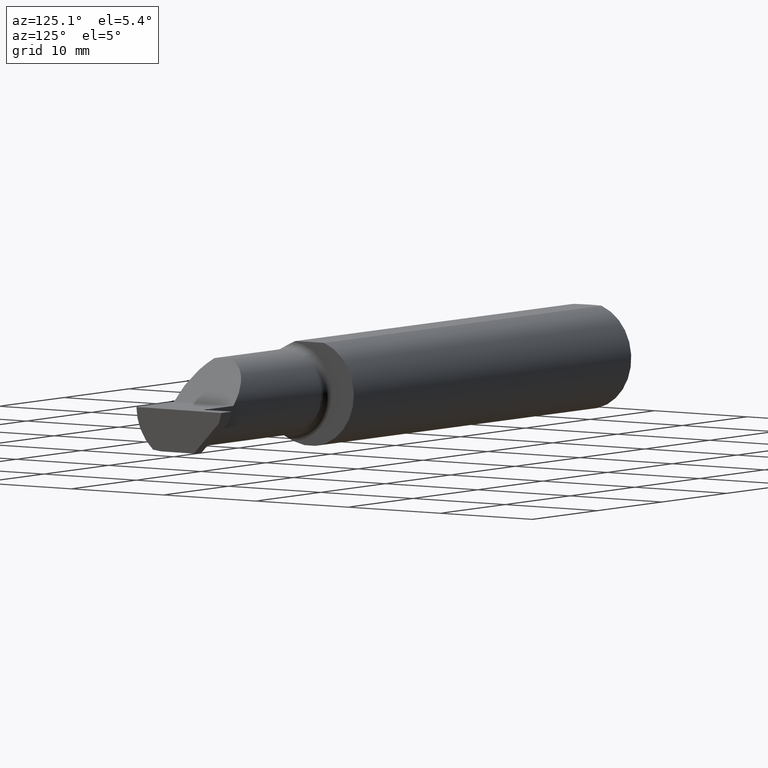
[diagram: clean part render]
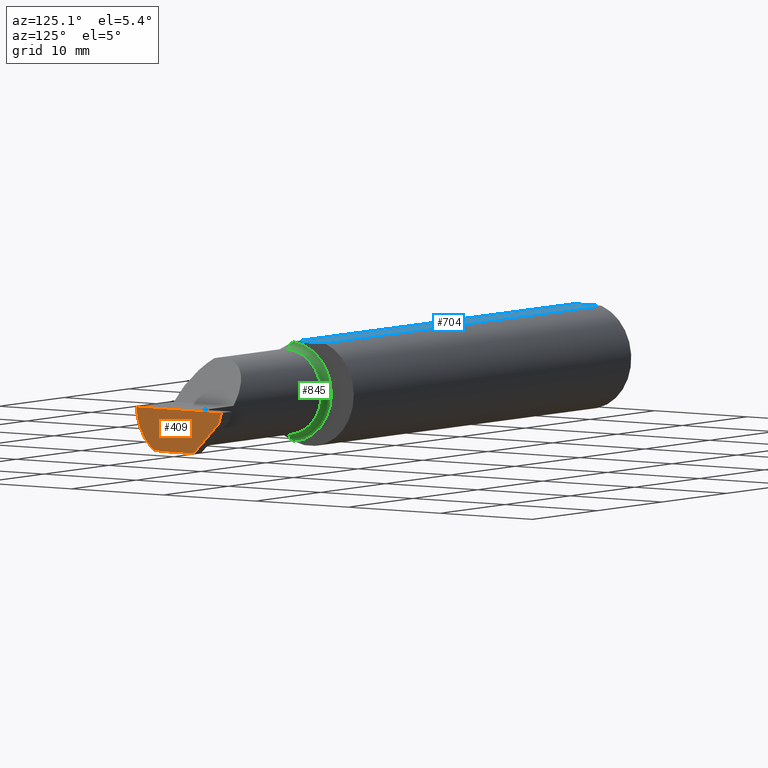
[diagram: same view with three faces highlighted in distinct colors, each labeled with its STEP entity id]
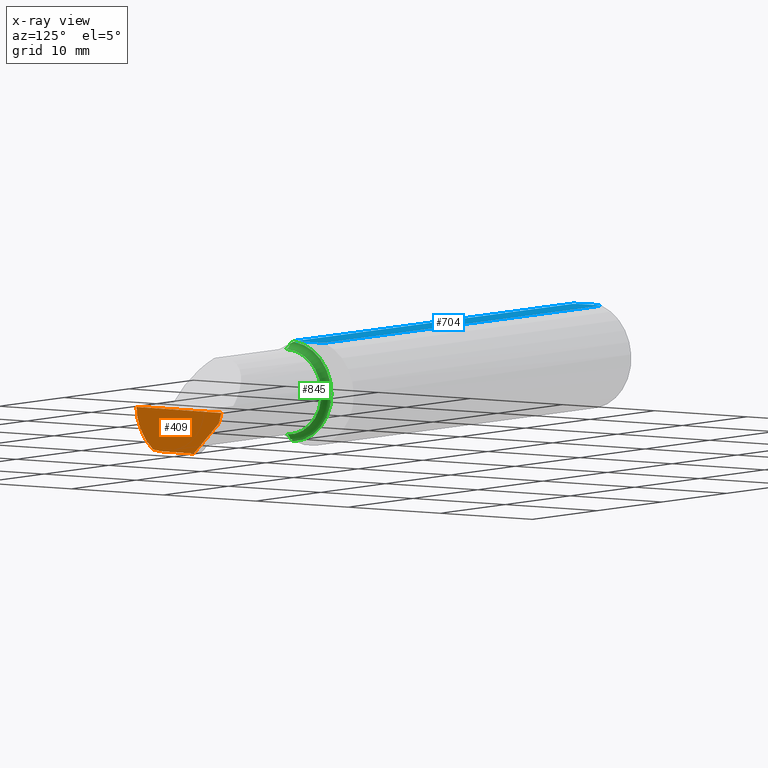
[diagram: x-ray of the same camera — body ghosted, the three highlighted faces saturated]
A machine part, auxiliary view with three faces highlighted in distinct colors.
The next image is the same camera in x-ray (body ghosted, the three faces saturated) — at least one of them is partly hidden behind the body in this view.
Their STEP definitions:

[orange] entity #409 — the highlighted planar face has unit normal (-0.999, 0.0349, 0.0262).
#26 =( BOUNDED_CURVE ( )  B_SPLINE_CURVE ( 3, ( #451, #853, #748, #429 ),
 .UNSPECIFIED., .F., .T. ) 
 B_SPLINE_CURVE_WITH_KNOTS ( ( 4, 4 ),
 ( 6.032366188922103412, 6.926893589830550368 ),
 .UNSPECIFIED. ) 
 CURVE ( )  GEOMETRIC_REPRESENTATION_ITEM ( )  RATIONAL_B_SPLINE_CURVE ( ( 1.000000000000000000, 0.9344226172588803170, 0.9344226172588803170, 1.000000000000000000 ) ) 
 REPRESENTATION_ITEM ( '' )  );
#76 = CARTESIAN_POINT ( 'NONE',  ( 2.500000000000000000, 0.1846500000000000363, 0.000000000000000000 ) ) ;
#81 = CARTESIAN_POINT ( 'NONE',  ( 2.498573163503173156, 0.1723030515431495657, -0.03799999999999999212 ) ) ;
#86 = VERTEX_POINT ( 'NONE', #1025 ) ;
#96 = CARTESIAN_POINT ( 'NONE',  ( 2.498389373204160435, 0.1692961418071499968, -0.04100690973599954714 ) ) ;
#100 = CARTESIAN_POINT ( 'NONE',  ( 2.486311922989707490, -0.09477667630339421667, -0.1499999999999999944 ) ) ;
#116 = PLANE ( 'NONE',  #975 ) ;
#181 = EDGE_CURVE ( 'NONE', #215, #991, #966, .T. ) ;
#184 = CARTESIAN_POINT ( 'NONE',  ( 2.485628535317038867, -0.1172600179964007061, -0.1461167706989303094 ) ) ;
#199 = CARTESIAN_POINT ( 'NONE',  ( 2.493549313964080305, 0.1124750847462631514, -0.1499999999999999944 ) ) ;
#210 = DIRECTION ( 'NONE',  ( -0.03489949670249477970, -0.9993908270190959842, 0.000000000000000000 ) ) ;
#215 = VERTEX_POINT ( 'NONE', #76 ) ;
#220 = CARTESIAN_POINT ( 'NONE',  ( 2.491727426418679059, 0.06030305154314919563, -0.1499999999999999944 ) ) ;
#232 = CARTESIAN_POINT ( 'NONE',  ( 2.500000000000000000, 0.1846500000000000363, 0.000000000000000000 ) ) ;
#238 = ORIENTED_EDGE ( 'NONE', *, *, #719, .F. ) ;
#273 = ORIENTED_EDGE ( 'NONE', *, *, #641, .T. ) ;
#297 = VERTEX_POINT ( 'NONE', #581 ) ;
#343 =( BOUNDED_CURVE ( )  B_SPLINE_CURVE ( 3, ( #184, #412, #100, #983 ),
 .UNSPECIFIED., .F., .T. ) 
 B_SPLINE_CURVE_WITH_KNOTS ( ( 4, 4 ),
 ( 0.6990500090944880007, 0.9270880441439324215 ),
 .UNSPECIFIED. ) 
 CURVE ( )  GEOMETRIC_REPRESENTATION_ITEM ( )  RATIONAL_B_SPLINE_CURVE ( ( 1.000000000000000000, 0.9956712472009929815, 0.9956712472009929815, 1.000000000000000000 ) ) 
 REPRESENTATION_ITEM ( '' )  );
#356 = CARTESIAN_POINT ( 'NONE',  ( 2.500000000000000000, 0.1846500000000000363, 0.000000000000000000 ) ) ;
#409 = ADVANCED_FACE ( 'NONE', ( #756 ), #116, .F. ) ;
#412 = CARTESIAN_POINT ( 'NONE',  ( 2.485949549028435790, -0.1061291577212409298, -0.1486999626928446061 ) ) ;
#426 = ORIENTED_EDGE ( 'NONE', *, *, #750, .T. ) ;
#429 = CARTESIAN_POINT ( 'NONE',  ( 2.487009473749072441, -0.1873499999999999055, 0.000000000000000000 ) ) ;
#451 = CARTESIAN_POINT ( 'NONE',  ( 2.485628535317038867, -0.1172600179964007061, -0.1461167706989303094 ) ) ;
#547 = DIRECTION ( 'NONE',  ( -0.03568783471266506746, -0.3088201463263676727, -0.9504506802967118695 ) ) ;
#555 = CARTESIAN_POINT ( 'NONE',  ( 2.499872637845352408, 0.1835478877661963770, -0.003391952678096913417 ) ) ;
#581 = CARTESIAN_POINT ( 'NONE',  ( 2.486710951318955587, -0.08334999999999995191, -0.1499999999999999944 ) ) ;
#590 = DIRECTION ( 'NONE',  ( -0.03489949670249477970, -0.9993908270190959842, 0.000000000000000000 ) ) ;
#616 = CARTESIAN_POINT ( 'NONE',  ( 2.487009473749072441, -0.1873499999999999055, 0.000000000000000000 ) ) ;
#641 = EDGE_CURVE ( 'NONE', #215, #986, #949, .T. ) ;
#642 = ORIENTED_EDGE ( 'NONE', *, *, #830, .F. ) ;
#705 = VECTOR ( 'NONE', #547, 39.37007874015748143 ) ;
#718 = VECTOR ( 'NONE', #907, 39.37007874015748143 ) ;
#719 = EDGE_CURVE ( 'NONE', #991, #921, #735, .T. ) ;
#735 = LINE ( 'NONE', #96, #718 ) ;
#746 = EDGE_LOOP ( 'NONE', ( #426, #1003, #238, #952, #273, #642 ) ) ;
#748 = CARTESIAN_POINT ( 'NONE',  ( 2.485494735025390867, -0.1873500000000000443, -0.05781030015605120170 ) ) ;
#750 = EDGE_CURVE ( 'NONE', #86, #297, #343, .T. ) ;
#756 = FACE_OUTER_BOUND ( 'NONE', #746, .T. ) ;
#774 = DIRECTION ( 'NONE',  ( -0.9990483607430193924, 0.03488753751660920999, 0.02617694830787320806 ) ) ;
#788 = EDGE_CURVE ( 'NONE', #921, #297, #1017, .T. ) ;
#790 = VECTOR ( 'NONE', #870, 39.37007874015748854 ) ;
#830 = EDGE_CURVE ( 'NONE', #86, #986, #26, .T. ) ;
#853 = CARTESIAN_POINT ( 'NONE',  ( 2.485002117657001186, -0.1623470442677541481, -0.1099340280425338545 ) ) ;
#870 = DIRECTION ( 'NONE',  ( -0.03489949670249478664, -0.9993908270190959842, 0.000000000000000000 ) ) ;
#892 = VECTOR ( 'NONE', #210, 39.37007874015748143 ) ;
#907 = DIRECTION ( 'NONE',  ( -0.04317993108638582683, -0.7064472710512009757, -0.7064472710511987552 ) ) ;
#921 = VERTEX_POINT ( 'NONE', #220 ) ;
#949 = LINE ( 'NONE', #232, #790 ) ;
#952 = ORIENTED_EDGE ( 'NONE', *, *, #181, .F. ) ;
#966 = LINE ( 'NONE', #555, #705 ) ;
#975 = AXIS2_PLACEMENT_3D ( 'NONE', #356, #774, #590 ) ;
#983 = CARTESIAN_POINT ( 'NONE',  ( 2.486710951318955587, -0.08334999999999995191, -0.1499999999999999944 ) ) ;
#986 = VERTEX_POINT ( 'NONE', #616 ) ;
#991 = VERTEX_POINT ( 'NONE', #81 ) ;
#1003 = ORIENTED_EDGE ( 'NONE', *, *, #788, .F. ) ;
#1017 = LINE ( 'NONE', #199, #892 ) ;
#1025 = CARTESIAN_POINT ( 'NONE',  ( 2.485628535317038867, -0.1172600179964007061, -0.1461167706989303094 ) ) ;

[blue] entity #704 — the highlighted planar face has unit normal (0, -0, 1).
#18 = CARTESIAN_POINT ( 'NONE',  ( 0.004999999999999810152, 2.941982644279459108E-17, 0.1773499999999999799 ) ) ;
#66 = LINE ( 'NONE', #379, #316 ) ;
#69 = DIRECTION ( 'NONE',  ( 1.000000000000000000, 0.000000000000000000, 0.000000000000000000 ) ) ;
#112 = CARTESIAN_POINT ( 'NONE',  ( 0.005916828623699103493, 0.02060071390057610988, 0.1773499999999999799 ) ) ;
#136 = VERTEX_POINT ( 'NONE', #946 ) ;
#138 = CARTESIAN_POINT ( 'NONE',  ( 1.699999999999999956, -0.06039039658753699025, 0.1773499999999999799 ) ) ;
#140 = AXIS2_PLACEMENT_3D ( 'NONE', #175, #964, #988 ) ;
#153 = DIRECTION ( 'NONE',  ( -0.000000000000000000, 1.000000000000000000, 0.000000000000000000 ) ) ;
#168 = EDGE_CURVE ( 'NONE', #967, #442, #630, .T. ) ;
#175 = CARTESIAN_POINT ( 'NONE',  ( 2.500000000000000000, -0.1873500000000000165, 0.1773499999999999799 ) ) ;
#194 = EDGE_CURVE ( 'NONE', #136, #967, #66, .T. ) ;
#214 = EDGE_CURVE ( 'NONE', #561, #136, #1029, .T. ) ;
#225 = ORIENTED_EDGE ( 'NONE', *, *, #990, .T. ) ;
#247 = CARTESIAN_POINT ( 'NONE',  ( 0.004999999999999810152, 2.941982644279459108E-17, 0.1773499999999999799 ) ) ;
#266 = CARTESIAN_POINT ( 'NONE',  ( 0.01185291896084215285, 0.05062716160312497049, 0.1773499999999999521 ) ) ;
#298 = EDGE_CURVE ( 'NONE', #552, #561, #571, .T. ) ;
#299 = DIRECTION ( 'NONE',  ( -1.000000000000000000, -0.000000000000000000, -0.000000000000000000 ) ) ;
#307 = CARTESIAN_POINT ( 'NONE',  ( 0.004999999999999810152, -0.01026662907944654590, 0.1773499999999999521 ) ) ;
#316 = VECTOR ( 'NONE', #69, 39.37007874015748143 ) ;
#379 = CARTESIAN_POINT ( 'NONE',  ( 0.000000000000000000, -0.06039039658753697637, 0.1773499999999999799 ) ) ;
#413 = CARTESIAN_POINT ( 'NONE',  ( 0.009346310357820446918, 0.04072930668827415973, 0.1773500000000000354 ) ) ;
#442 = VERTEX_POINT ( 'NONE', #596 ) ;
#476 = CARTESIAN_POINT ( 'NONE',  ( 0.009318557230853183673, -0.04061090184993775692, 0.1773499999999999799 ) ) ;
#502 = ORIENTED_EDGE ( 'NONE', *, *, #298, .T. ) ;
#527 = ORIENTED_EDGE ( 'NONE', *, *, #194, .T. ) ;
#543 = CARTESIAN_POINT ( 'NONE',  ( 0.004999999999999810152, 2.941982644279459108E-17, 0.1773499999999999799 ) ) ;
#552 = VERTEX_POINT ( 'NONE', #713 ) ;
#561 = VERTEX_POINT ( 'NONE', #543 ) ;
#570 = FACE_OUTER_BOUND ( 'NONE', #732, .T. ) ;
#571 = B_SPLINE_CURVE_WITH_KNOTS ( 'NONE', 3,
 ( #887, #266, #413, #112, #731, #18 ),
 .UNSPECIFIED., .F., .F.,
 ( 4, 2, 4 ),
 ( 0.004207325536406421491, 0.004979129323161654228, 0.005750933109916886096 ),
 .UNSPECIFIED. ) ;
#596 = CARTESIAN_POINT ( 'NONE',  ( 1.699999999999999956, 0.06039039658754216666, 0.1773499999999999799 ) ) ;
#602 = VECTOR ( 'NONE', #153, 39.37007874015748143 ) ;
#610 = ORIENTED_EDGE ( 'NONE', *, *, #214, .T. ) ;
#630 = LINE ( 'NONE', #787, #602 ) ;
#704 = ADVANCED_FACE ( 'NONE', ( #570 ), #724, .T. ) ;
#713 = CARTESIAN_POINT ( 'NONE',  ( 0.01499999999999751879, 0.06039039658754215278, 0.1773499999999999799 ) ) ;
#724 = PLANE ( 'NONE',  #140 ) ;
#731 = CARTESIAN_POINT ( 'NONE',  ( 0.004999999999999816223, 0.01027925662263860090, 0.1773499999999999799 ) ) ;
#732 = EDGE_LOOP ( 'NONE', ( #527, #973, #225, #502, #610 ) ) ;
#787 = CARTESIAN_POINT ( 'NONE',  ( 1.699999999999999956, -0.1873500000000000165, 0.1773499999999999799 ) ) ;
#793 = CARTESIAN_POINT ( 'NONE',  ( 0.01499999999999997689, -0.06039039658753697637, 0.1773499999999999799 ) ) ;
#839 = VECTOR ( 'NONE', #299, 39.37007874015748143 ) ;
#862 = CARTESIAN_POINT ( 'NONE',  ( 0.01186375298701895439, -0.05066077215909269016, 0.1773499999999999799 ) ) ;
#887 = CARTESIAN_POINT ( 'NONE',  ( 0.01499999999999751879, 0.06039039658754215278, 0.1773499999999999799 ) ) ;
#939 = LINE ( 'NONE', #1030, #839 ) ;
#946 = CARTESIAN_POINT ( 'NONE',  ( 0.01499999999999997689, -0.06039039658753697637, 0.1773499999999999799 ) ) ;
#950 = CARTESIAN_POINT ( 'NONE',  ( 0.005896899252109291494, -0.02043863390046161965, 0.1773500000000000354 ) ) ;
#964 = DIRECTION ( 'NONE',  ( 0.000000000000000000, -0.000000000000000000, 1.000000000000000000 ) ) ;
#967 = VERTEX_POINT ( 'NONE', #138 ) ;
#973 = ORIENTED_EDGE ( 'NONE', *, *, #168, .T. ) ;
#988 = DIRECTION ( 'NONE',  ( 1.000000000000000000, 0.000000000000000000, -0.000000000000000000 ) ) ;
#990 = EDGE_CURVE ( 'NONE', #442, #552, #939, .T. ) ;
#1029 = B_SPLINE_CURVE_WITH_KNOTS ( 'NONE', 3,
 ( #247, #307, #950, #476, #862, #793 ),
 .UNSPECIFIED., .F., .F.,
 ( 4, 2, 4 ),
 ( 0.005750933109916886096, 0.006521788775031541266, 0.007292644440146196436 ),
 .UNSPECIFIED. ) ;
#1030 = CARTESIAN_POINT ( 'NONE',  ( 0.000000000000000000, 0.06039039658753697637, 0.1773499999999999799 ) ) ;

[green] entity #845 — the highlighted toroidal blend (fillet) surface has major radius 4.445 mm and minor (blend) radius 0.635 mm.
#8 = EDGE_CURVE ( 'NONE', #52, #661, #636, .T. ) ;
#19 = ORIENTED_EDGE ( 'NONE', *, *, #134, .F. ) ;
#33 = CARTESIAN_POINT ( 'NONE',  ( 1.724999999999999867, -0.08334999999999995191, 0.000000000000000000 ) ) ;
#52 = VERTEX_POINT ( 'NONE', #283 ) ;
#53 = CARTESIAN_POINT ( 'NONE',  ( 1.701062863587535334, -0.08334999999999989639, -0.1677879614275112619 ) ) ;
#71 = TOROIDAL_SURFACE ( 'NONE', #386, 0.1749999999999999889, 0.02499999999999993894 ) ;
#72 = B_SPLINE_CURVE_WITH_KNOTS ( 'NONE', 3,
 ( #258, #424, #821, #431 ),
 .UNSPECIFIED., .F., .F.,
 ( 4, 4 ),
 ( 0.001278539404338873992, 0.001694873732696220705 ),
 .UNSPECIFIED. ) ;
#98 = ORIENTED_EDGE ( 'NONE', *, *, #314, .T. ) ;
#121 = CIRCLE ( 'NONE', #873, 0.02499999999999993894 ) ;
#134 = EDGE_CURVE ( 'NONE', #883, #840, #121, .T. ) ;
#169 = CARTESIAN_POINT ( 'NONE',  ( 1.700344683557281300, -0.07855153123406181936, 0.1701716388274757685 ) ) ;
#187 = ORIENTED_EDGE ( 'NONE', *, *, #778, .T. ) ;
#205 = FACE_OUTER_BOUND ( 'NONE', #916, .T. ) ;
#209 = ORIENTED_EDGE ( 'NONE', *, *, #8, .F. ) ;
#226 = EDGE_CURVE ( 'NONE', #621, #840, #383, .T. ) ;
#241 = CARTESIAN_POINT ( 'NONE',  ( 1.724999999999999867, -0.08334999999999992415, -0.1749999999999999889 ) ) ;
#246 = CARTESIAN_POINT ( 'NONE',  ( 1.724999999999999867, -0.08334999999999995191, 0.1749999999999999889 ) ) ;
#256 = DIRECTION ( 'NONE',  ( 0.000000000000000000, -1.000000000000000000, 0.000000000000000000 ) ) ;
#258 = CARTESIAN_POINT ( 'NONE',  ( 1.701062863587535334, -0.08334999999999989639, -0.1677879614275112619 ) ) ;
#268 = ORIENTED_EDGE ( 'NONE', *, *, #689, .T. ) ;
#276 = CARTESIAN_POINT ( 'NONE',  ( 1.724999999999999867, -0.08334999999999995191, -0.1499999999999999944 ) ) ;
#283 = CARTESIAN_POINT ( 'NONE',  ( 1.699999999999999956, -0.06851976604679065053, 0.1743704796142198643 ) ) ;
#285 = DIRECTION ( 'NONE',  ( 0.000000000000000000, 0.000000000000000000, 1.000000000000000000 ) ) ;
#302 = DIRECTION ( 'NONE',  ( -0.000000000000000000, 1.000000000000000000, 1.224646799147353207E-16 ) ) ;
#314 = EDGE_CURVE ( 'NONE', #883, #661, #72, .T. ) ;
#315 = DIRECTION ( 'NONE',  ( -1.000000000000000000, -0.000000000000000000, -0.000000000000000000 ) ) ;
#335 = CIRCLE ( 'NONE', #586, 0.02499999999999993894 ) ;
#355 = DIRECTION ( 'NONE',  ( -1.000000000000000000, -0.000000000000000000, -0.000000000000000000 ) ) ;
#383 = CIRCLE ( 'NONE', #1033, 0.1499999999999999944 ) ;
#386 = AXIS2_PLACEMENT_3D ( 'NONE', #33, #355, #285 ) ;
#390 = CARTESIAN_POINT ( 'NONE',  ( 1.724999999999999867, -0.08334999999999996578, 0.000000000000000000 ) ) ;
#424 = CARTESIAN_POINT ( 'NONE',  ( 1.700346246588684940, -0.07856197451716399882, -0.1701664510438046229 ) ) ;
#431 = CARTESIAN_POINT ( 'NONE',  ( 1.699999999999999956, -0.06851976604679065053, -0.1743704796142198643 ) ) ;
#450 = VERTEX_POINT ( 'NONE', #599 ) ;
#472 = AXIS2_PLACEMENT_3D ( 'NONE', #1007, #850, #521 ) ;
#488 = CARTESIAN_POINT ( 'NONE',  ( 1.701062863587533558, -0.08334999999998812803, 0.1677879614275171183 ) ) ;
#521 = DIRECTION ( 'NONE',  ( 0.000000000000000000, 0.000000000000000000, 1.000000000000000000 ) ) ;
#565 = DIRECTION ( 'NONE',  ( 0.000000000000000000, 0.000000000000000000, -1.000000000000000000 ) ) ;
#567 = ORIENTED_EDGE ( 'NONE', *, *, #226, .T. ) ;
#586 = AXIS2_PLACEMENT_3D ( 'NONE', #246, #256, #565 ) ;
#599 = CARTESIAN_POINT ( 'NONE',  ( 1.701062863587533558, -0.08334999999998812803, 0.1677879614275171183 ) ) ;
#621 = VERTEX_POINT ( 'NONE', #625 ) ;
#625 = CARTESIAN_POINT ( 'NONE',  ( 1.724999999999999867, -0.08334999999999996578, 0.1499999999999999944 ) ) ;
#636 = CIRCLE ( 'NONE', #472, 0.1749999999999999889 ) ;
#661 = VERTEX_POINT ( 'NONE', #739 ) ;
#663 = CARTESIAN_POINT ( 'NONE',  ( 1.699999999999999956, -0.06851976604679065053, 0.1743704796142198643 ) ) ;
#689 = EDGE_CURVE ( 'NONE', #450, #621, #335, .T. ) ;
#711 = DIRECTION ( 'NONE',  ( 0.000000000000000000, 0.000000000000000000, 1.000000000000000000 ) ) ;
#720 = DIRECTION ( 'NONE',  ( 0.000000000000000000, 0.000000000000000000, 1.000000000000000000 ) ) ;
#739 = CARTESIAN_POINT ( 'NONE',  ( 1.699999999999999956, -0.06851976604679065053, -0.1743704796142198643 ) ) ;
#778 = EDGE_CURVE ( 'NONE', #52, #450, #885, .T. ) ;
#821 = CARTESIAN_POINT ( 'NONE',  ( 1.699999999999999956, -0.07359296612170562746, -0.1723769398647691520 ) ) ;
#840 = VERTEX_POINT ( 'NONE', #276 ) ;
#845 = ADVANCED_FACE ( 'NONE', ( #205 ), #71, .F. ) ;
#850 = DIRECTION ( 'NONE',  ( -1.000000000000000000, -0.000000000000000000, -0.000000000000000000 ) ) ;
#873 = AXIS2_PLACEMENT_3D ( 'NONE', #241, #302, #720 ) ;
#883 = VERTEX_POINT ( 'NONE', #53 ) ;
#885 = B_SPLINE_CURVE_WITH_KNOTS ( 'NONE', 3,
 ( #663, #886, #169, #488 ),
 .UNSPECIFIED., .F., .F.,
 ( 4, 4 ),
 ( 4.423516731080786679E-05, 0.0004561457252213465489 ),
 .UNSPECIFIED. ) ;
#886 = CARTESIAN_POINT ( 'NONE',  ( 1.699999999999999289, -0.07360907839729495528, 0.1723706084642000758 ) ) ;
#916 = EDGE_LOOP ( 'NONE', ( #19, #98, #209, #187, #268, #567 ) ) ;
#1007 = CARTESIAN_POINT ( 'NONE',  ( 1.699999999999999956, -0.08334999999999996578, 0.000000000000000000 ) ) ;
#1033 = AXIS2_PLACEMENT_3D ( 'NONE', #390, #315, #711 ) ;